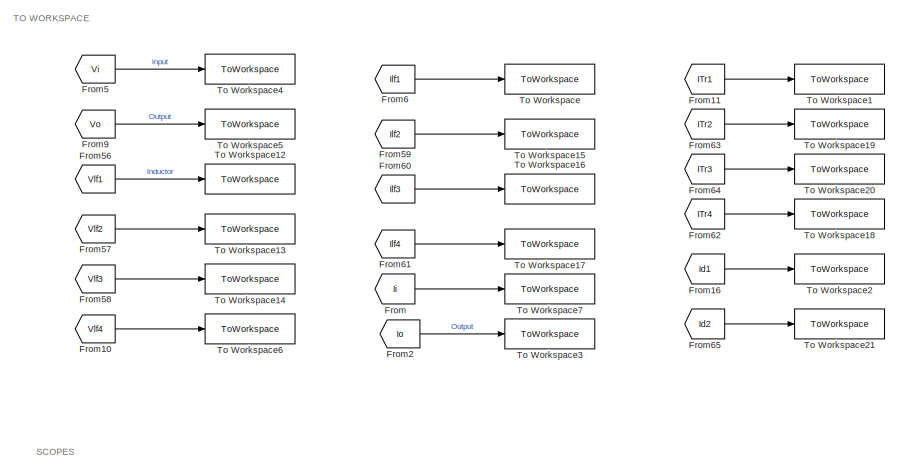
[diagram: root canvas - part 1/11, top center region]
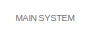
[diagram: root canvas - part 2/11, top left region]
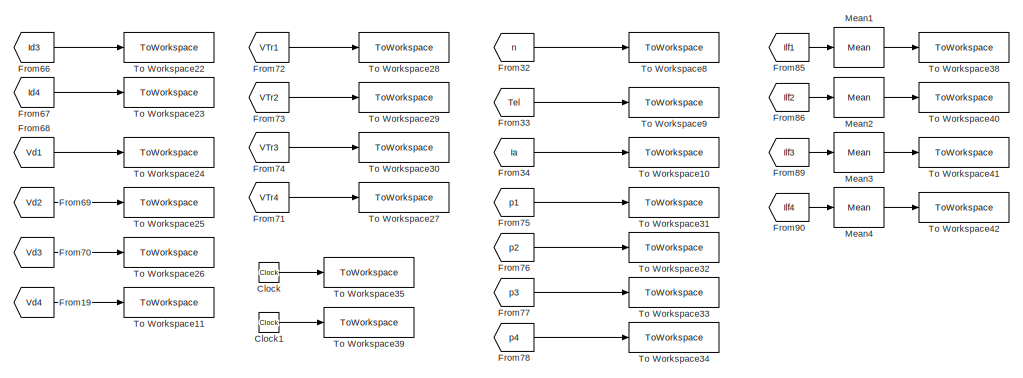
[diagram: root canvas - part 3/11, top right region]
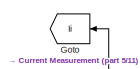
[diagram: root canvas - part 4/11, top left region]
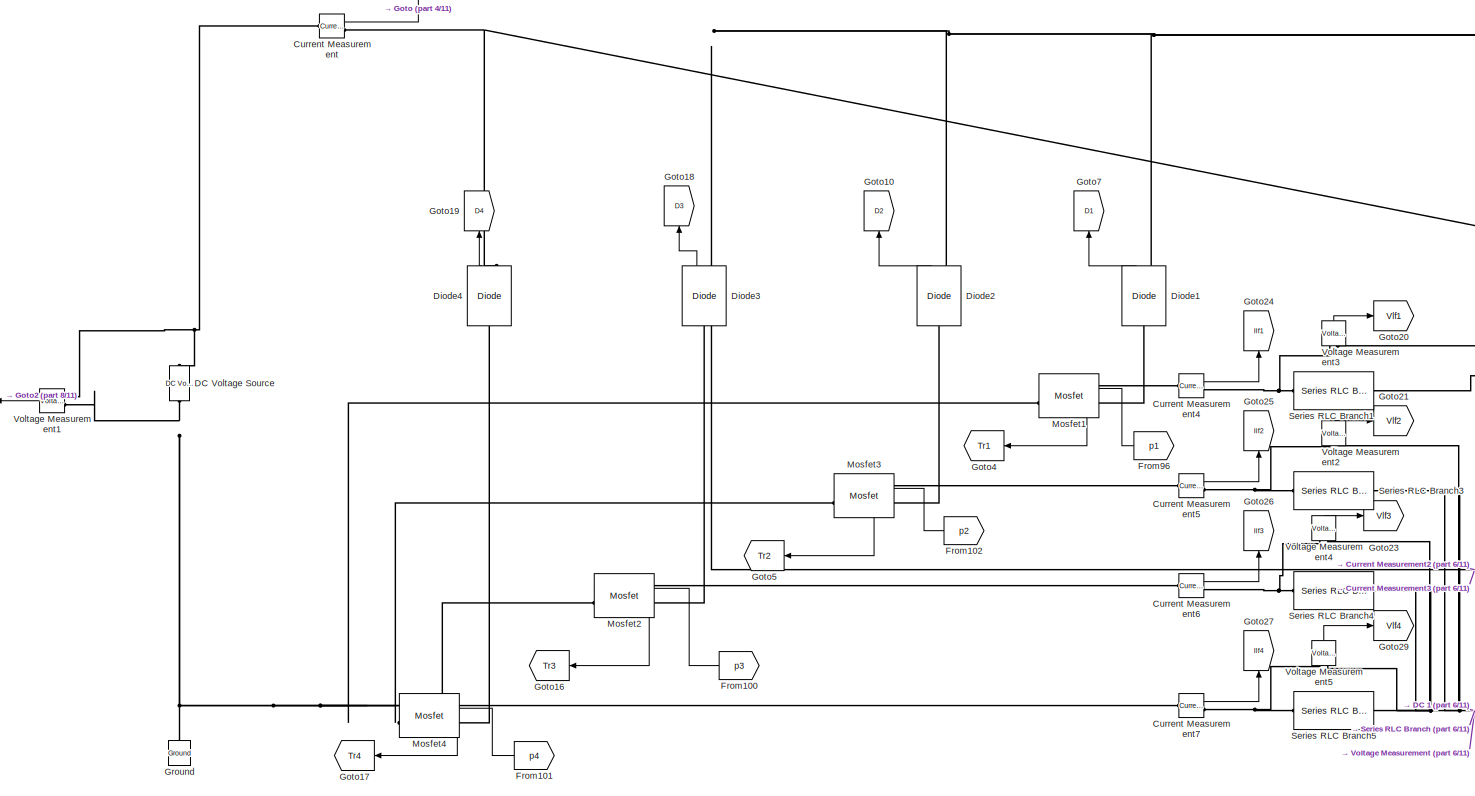
[diagram: root canvas - part 5/11, top left region]
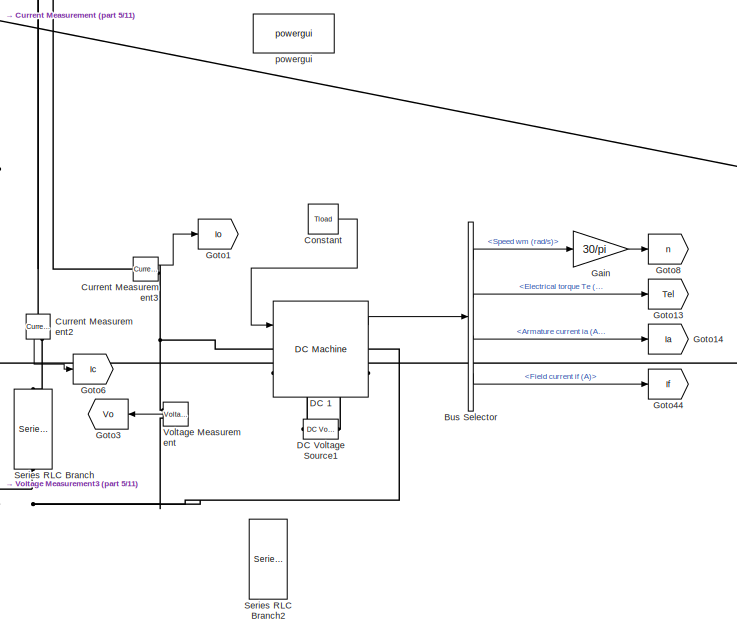
[diagram: root canvas - part 6/11, top center region]
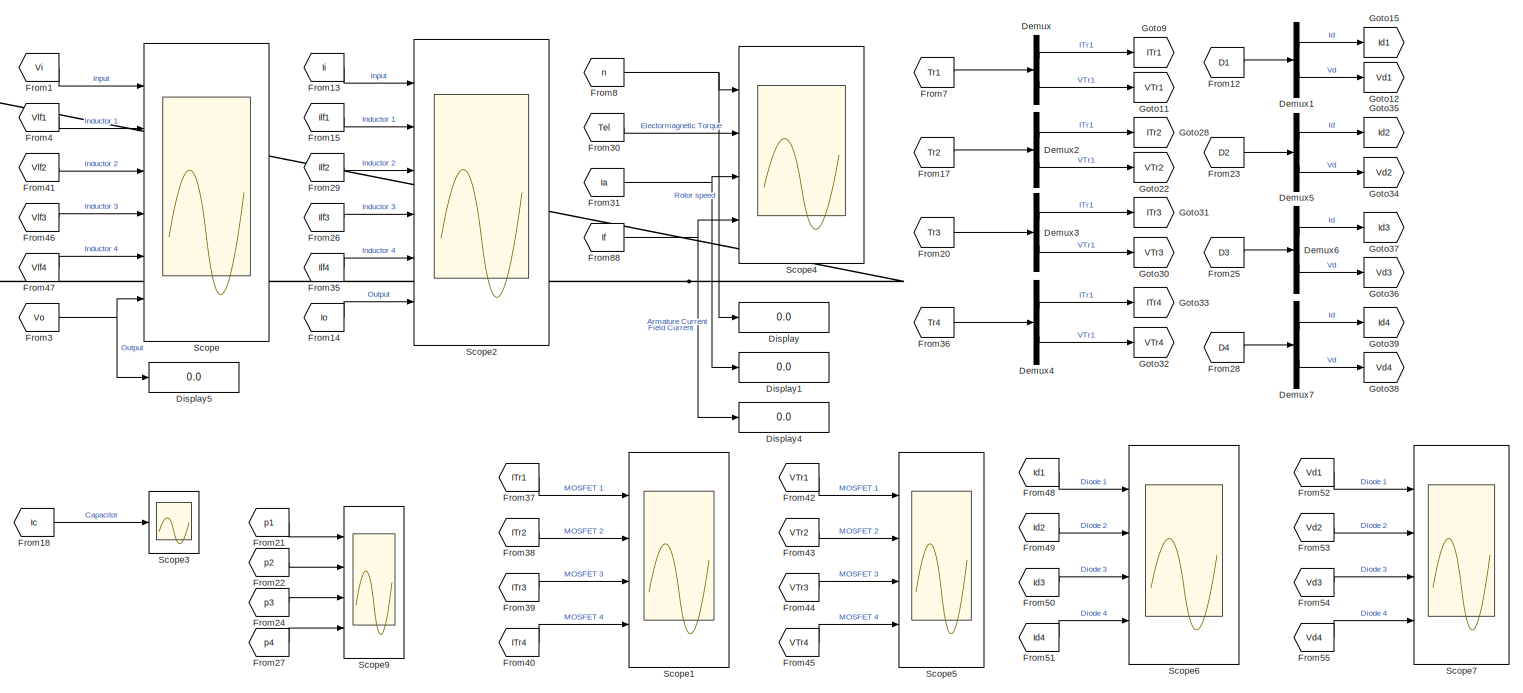
[diagram: root canvas - part 7/11, middle right region]
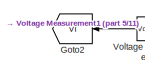
[diagram: root canvas - part 8/11, top left region]
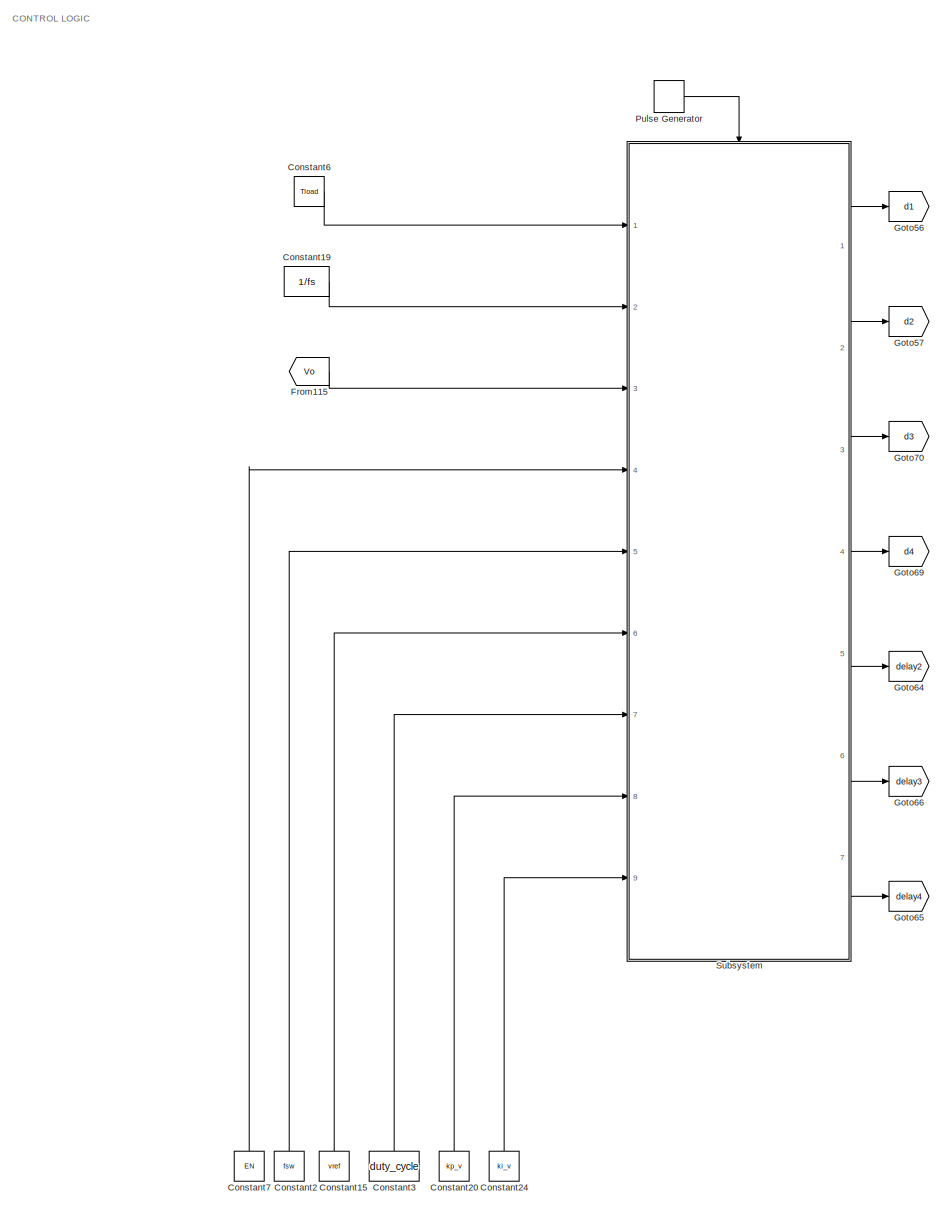
[diagram: root canvas - part 9/11, bottom left region]
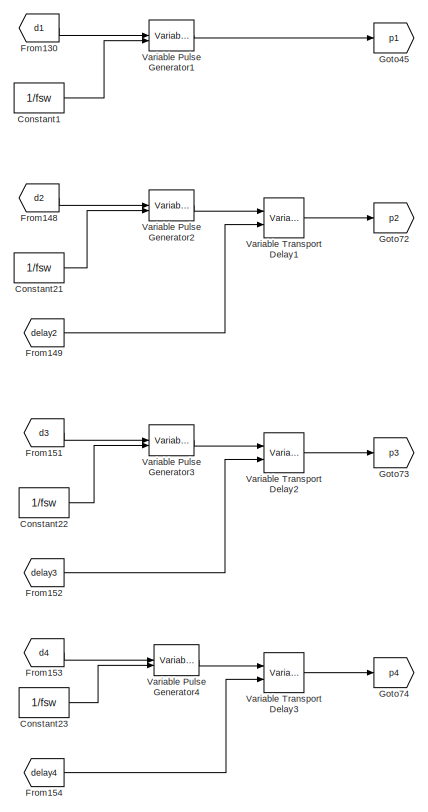
[diagram: root canvas - part 10/11, bottom center region]
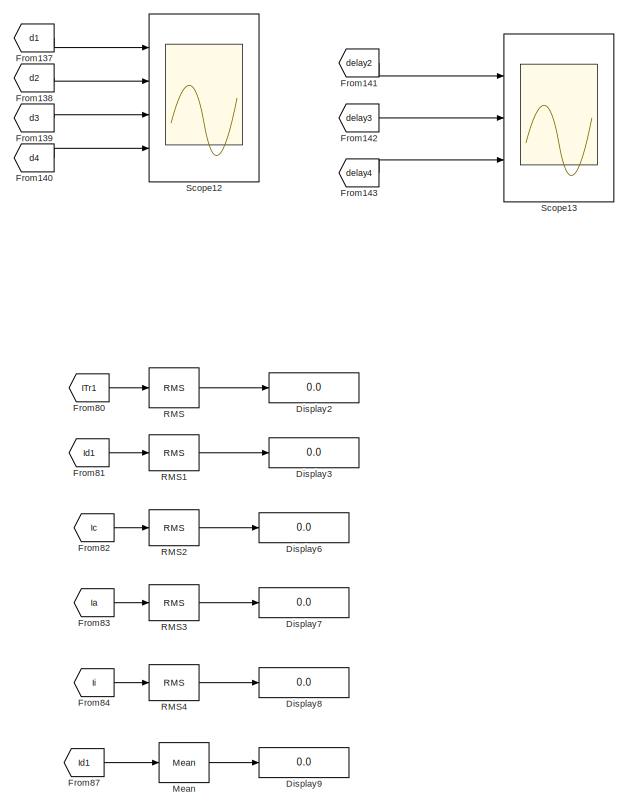
[diagram: root canvas - part 11/11, bottom center region]
MODEL slx_aa81e1dfb4d5
KIND model
CONFIG AbsTol = auto
CONFIG EnableMultiTasking = off
CONFIG FixedStep = auto
CONFIG InitFcn = Interleaved_Script
CONFIG MaxStep = 1e-8
CONFIG MinStep = auto
CONFIG RelTol = 1e-3
CONFIG SampleTimeConstraint = Unconstrained
CONFIG SolverName = ode23tb
CONFIG StartTime = 0.0
CONFIG StopTime = 0.5
BLOCK [BusSelector] Bus Selector
  OutputSignals = Speed wm (rad/s),Electrical torque Te (n m),Armature current ia (A),Field current if (A)
  Ports = [1, 4]
BLOCK [Clock] Clock
BLOCK [Clock] Clock1
BLOCK [Constant] Constant
  Value = Tload
BLOCK [Constant] Constant1
  Value = 1/fsw
BLOCK [Constant] Constant15
  NameLocation = right
  Value = vref
BLOCK [Constant] Constant19
  Value = 1/fs
BLOCK [Constant] Constant2
  NameLocation = right
  Value = fsw
BLOCK [Constant] Constant20
  NameLocation = right
  Value = kp_v
BLOCK [Constant] Constant21
  Value = 1/fsw
BLOCK [Constant] Constant22
  Value = 1/fsw
BLOCK [Constant] Constant23
  Value = 1/fsw
BLOCK [Constant] Constant24
  NameLocation = right
  Value = ki_v
BLOCK [Constant] Constant3
  NameLocation = right
  Value = duty_cycle
BLOCK [Constant] Constant6
  Value = Tload
BLOCK [Constant] Constant7
  NameLocation = right
  Value = EN
BLOCK [Reference] Current Measurement  REF=spsCurrentMeasurementLib/Current Measurement
  Ports = [0, 1, 0, 0, 0, 1, 1]
  SourceBlock = spsCurrentMeasurementLib/Current Measurement
  SourceProductBaseCode = PS
  SourceType = Current Measurement
  UserDataPersistent = on
BLOCK [Reference] Current Measurement2  REF=spsCurrentMeasurementLib/Current Measurement
  NameLocation = left
  Ports = [0, 1, 0, 0, 0, 1, 1]
  SourceBlock = spsCurrentMeasurementLib/Current Measurement
  SourceProductBaseCode = PS
  SourceType = Current Measurement
  UserDataPersistent = on
BLOCK [Reference] Current Measurement3  REF=spsCurrentMeasurementLib/Current Measurement
  Ports = [0, 1, 0, 0, 0, 1, 1]
  SourceBlock = spsCurrentMeasurementLib/Current Measurement
  SourceProductBaseCode = PS
  SourceType = Current Measurement
  UserDataPersistent = on
BLOCK [Reference] Current Measurement4  REF=spsCurrentMeasurementLib/Current Measurement
  Ports = [0, 1, 0, 0, 0, 1, 1]
  SourceBlock = spsCurrentMeasurementLib/Current Measurement
  SourceProductBaseCode = PS
  SourceType = Current Measurement
  UserDataPersistent = on
BLOCK [Reference] Current Measurement5  REF=spsCurrentMeasurementLib/Current Measurement
  Ports = [0, 1, 0, 0, 0, 1, 1]
  SourceBlock = spsCurrentMeasurementLib/Current Measurement
  SourceProductBaseCode = PS
  SourceType = Current Measurement
  UserDataPersistent = on
BLOCK [Reference] Current Measurement6  REF=spsCurrentMeasurementLib/Current Measurement
  Ports = [0, 1, 0, 0, 0, 1, 1]
  SourceBlock = spsCurrentMeasurementLib/Current Measurement
  SourceProductBaseCode = PS
  SourceType = Current Measurement
  UserDataPersistent = on
BLOCK [Reference] Current Measurement7  REF=spsCurrentMeasurementLib/Current Measurement
  Ports = [0, 1, 0, 0, 0, 1, 1]
  SourceBlock = spsCurrentMeasurementLib/Current Measurement
  SourceProductBaseCode = PS
  SourceType = Current Measurement
  UserDataPersistent = on
BLOCK [Reference] DC 1  REF=spsDCMachineLib/DC Machine
  Ports = [1, 1, 0, 0, 0, 2, 2]
  SourceBlock = spsDCMachineLib/DC Machine
  SourceProductBaseCode = PS
  SourceType = DC machine
BLOCK [Reference] DC Voltage Source  REF=spsDCVoltageSourceLib/DC Voltage Source
  Ports = [0, 0, 0, 0, 0, 1, 1]
  SourceBlock = spsDCVoltageSourceLib/DC Voltage Source
  SourceProductBaseCode = PS
  SourceType = DC Voltage Source
BLOCK [Reference] DC Voltage Source1  REF=spsDCVoltageSourceLib/DC Voltage Source
  NameLocation = right
  Ports = [0, 0, 0, 0, 0, 1, 1]
  SourceBlock = spsDCVoltageSourceLib/DC Voltage Source
  SourceProductBaseCode = PS
  SourceType = DC Voltage Source
BLOCK [Demux] Demux
  Outputs = 2
  Ports = [1, 2]
BLOCK [Demux] Demux1
  Outputs = 2
  Ports = [1, 2]
BLOCK [Demux] Demux2
  Outputs = 2
  Ports = [1, 2]
BLOCK [Demux] Demux3
  Outputs = 2
  Ports = [1, 2]
BLOCK [Demux] Demux4
  Outputs = 2
  Ports = [1, 2]
BLOCK [Demux] Demux5
  Outputs = 2
  Ports = [1, 2]
BLOCK [Demux] Demux6
  Outputs = 2
  Ports = [1, 2]
BLOCK [Demux] Demux7
  Outputs = 2
  Ports = [1, 2]
BLOCK [Reference] Diode1  REF=spsDiodeLib/Diode
  NameLocation = right
  Ports = [0, 1, 0, 0, 0, 1, 1]
  SourceBlock = spsDiodeLib/Diode
  SourceProductBaseCode = PS
  SourceType = Diode
BLOCK [Reference] Diode2  REF=spsDiodeLib/Diode
  NameLocation = right
  Ports = [0, 1, 0, 0, 0, 1, 1]
  SourceBlock = spsDiodeLib/Diode
  SourceProductBaseCode = PS
  SourceType = Diode
BLOCK [Reference] Diode3  REF=spsDiodeLib/Diode
  NameLocation = right
  Ports = [0, 1, 0, 0, 0, 1, 1]
  SourceBlock = spsDiodeLib/Diode
  SourceProductBaseCode = PS
  SourceType = Diode
BLOCK [Reference] Diode4  REF=spsDiodeLib/Diode
  NameLocation = right
  Ports = [0, 1, 0, 0, 0, 1, 1]
  SourceBlock = spsDiodeLib/Diode
  SourceProductBaseCode = PS
  SourceType = Diode
BLOCK [Display] Display
  Commented = on
  Decimation = 1
  Ports = [1]
BLOCK [Display] Display1
  Commented = on
  Decimation = 1
  Ports = [1]
BLOCK [Display] Display2
  Commented = on
  Decimation = 1
  Ports = [1]
BLOCK [Display] Display3
  Commented = on
  Decimation = 1
  Ports = [1]
BLOCK [Display] Display4
  Commented = on
  Decimation = 1
  Ports = [1]
BLOCK [Display] Display5
  Commented = on
  Decimation = 1
  Ports = [1]
BLOCK [Display] Display6
  Commented = on
  Decimation = 1
  Ports = [1]
BLOCK [Display] Display7
  Commented = on
  Decimation = 1
  Ports = [1]
BLOCK [Display] Display8
  Commented = on
  Decimation = 1
  Ports = [1]
BLOCK [Display] Display9
  Commented = on
  Decimation = 1
  Ports = [1]
BLOCK [From] From
  Commented = on
  GotoTag = Ii
  TagVisibility = global
BLOCK [From] From1
  Commented = on
  GotoTag = Vi
  TagVisibility = global
BLOCK [From] From10
  Commented = on
  GotoTag = Vlf4
  TagVisibility = global
BLOCK [From] From100
  GotoTag = p3
  NameLocation = top
BLOCK [From] From101
  GotoTag = p4
  NameLocation = top
BLOCK [From] From102
  GotoTag = p2
  NameLocation = top
BLOCK [From] From11
  Commented = on
  GotoTag = ITr1
  TagVisibility = global
BLOCK [From] From115
  GotoTag = Vo
  TagVisibility = global
BLOCK [From] From12
  GotoTag = D1
  TagVisibility = global
BLOCK [From] From13
  Commented = on
  GotoTag = Ii
  TagVisibility = global
BLOCK [From] From130
  GotoTag = d1
BLOCK [From] From137
  Commented = on
  GotoTag = d1
BLOCK [From] From138
  Commented = on
  GotoTag = d2
BLOCK [From] From139
  Commented = on
  GotoTag = d3
BLOCK [From] From14
  Commented = on
  GotoTag = Io
  TagVisibility = global
BLOCK [From] From140
  Commented = on
  GotoTag = d4
BLOCK [From] From141
  Commented = on
  GotoTag = delay2
BLOCK [From] From142
  Commented = on
  GotoTag = delay3
BLOCK [From] From143
  Commented = on
  GotoTag = delay4
BLOCK [From] From148
  GotoTag = d2
BLOCK [From] From149
  GotoTag = delay2
BLOCK [From] From15
  Commented = on
  GotoTag = Ilf1
  TagVisibility = global
BLOCK [From] From151
  GotoTag = d3
BLOCK [From] From152
  GotoTag = delay3
BLOCK [From] From153
  GotoTag = d4
BLOCK [From] From154
  GotoTag = delay4
BLOCK [From] From16
  Commented = on
  GotoTag = Id1
  TagVisibility = global
BLOCK [From] From17
  GotoTag = Tr2
  TagVisibility = global
BLOCK [From] From18
  Commented = on
  GotoTag = Ic
  TagVisibility = global
BLOCK [From] From19
  Commented = on
  GotoTag = Vd4
  TagVisibility = global
BLOCK [From] From2
  Commented = on
  GotoTag = Io
  TagVisibility = global
BLOCK [From] From20
  GotoTag = Tr3
  TagVisibility = global
BLOCK [From] From21
  Commented = on
  GotoTag = p1
BLOCK [From] From22
  Commented = on
  GotoTag = p2
BLOCK [From] From23
  GotoTag = D2
  TagVisibility = global
BLOCK [From] From24
  Commented = on
  GotoTag = p3
BLOCK [From] From25
  GotoTag = D3
  TagVisibility = global
BLOCK [From] From26
  Commented = on
  GotoTag = Ilf3
  TagVisibility = global
BLOCK [From] From27
  Commented = on
  GotoTag = p4
BLOCK [From] From28
  GotoTag = D4
  TagVisibility = global
BLOCK [From] From29
  Commented = on
  GotoTag = Ilf2
  TagVisibility = global
BLOCK [From] From3
  Commented = on
  GotoTag = Vo
  TagVisibility = global
BLOCK [From] From30
  Commented = on
  GotoTag = Tel
  TagVisibility = global
BLOCK [From] From31
  Commented = on
  GotoTag = Ia
  TagVisibility = global
BLOCK [From] From32
  GotoTag = n
  TagVisibility = global
BLOCK [From] From33
  Commented = on
  GotoTag = Tel
  TagVisibility = global
BLOCK [From] From34
  GotoTag = Ia
  TagVisibility = global
BLOCK [From] From35
  Commented = on
  GotoTag = Ilf4
  TagVisibility = global
BLOCK [From] From36
  GotoTag = Tr4
  TagVisibility = global
BLOCK [From] From37
  Commented = on
  GotoTag = ITr1
  TagVisibility = global
BLOCK [From] From38
  Commented = on
  GotoTag = ITr2
  TagVisibility = global
BLOCK [From] From39
  Commented = on
  GotoTag = ITr3
  TagVisibility = global
BLOCK [From] From4
  Commented = on
  GotoTag = Vlf1
  TagVisibility = global
BLOCK [From] From40
  Commented = on
  GotoTag = ITr4
  TagVisibility = global
BLOCK [From] From41
  Commented = on
  GotoTag = Vlf2
  TagVisibility = global
BLOCK [From] From42
  Commented = on
  GotoTag = VTr1
  TagVisibility = global
BLOCK [From] From43
  Commented = on
  GotoTag = VTr2
  TagVisibility = global
BLOCK [From] From44
  Commented = on
  GotoTag = VTr3
  TagVisibility = global
BLOCK [From] From45
  Commented = on
  GotoTag = VTr4
  TagVisibility = global
BLOCK [From] From46
  Commented = on
  GotoTag = Vlf3
  TagVisibility = global
BLOCK [From] From47
  Commented = on
  GotoTag = Vlf4
  TagVisibility = global
BLOCK [From] From48
  Commented = on
  GotoTag = Id1
  TagVisibility = global
BLOCK [From] From49
  Commented = on
  GotoTag = Id2
  TagVisibility = global
BLOCK [From] From5
  Commented = on
  GotoTag = Vi
  TagVisibility = global
BLOCK [From] From50
  Commented = on
  GotoTag = Id3
  TagVisibility = global
BLOCK [From] From51
  Commented = on
  GotoTag = Id4
  TagVisibility = global
BLOCK [From] From52
  Commented = on
  GotoTag = Vd1
  TagVisibility = global
BLOCK [From] From53
  Commented = on
  GotoTag = Vd2
  TagVisibility = global
BLOCK [From] From54
  Commented = on
  GotoTag = Vd3
  TagVisibility = global
BLOCK [From] From55
  Commented = on
  GotoTag = Vd4
  TagVisibility = global
BLOCK [From] From56
  Commented = on
  GotoTag = Vlf1
  TagVisibility = global
BLOCK [From] From57
  Commented = on
  GotoTag = Vlf2
  TagVisibility = global
BLOCK [From] From58
  Commented = on
  GotoTag = Vlf3
  TagVisibility = global
BLOCK [From] From59
  GotoTag = Ilf2
  TagVisibility = global
BLOCK [From] From6
  GotoTag = Ilf1
  TagVisibility = global
BLOCK [From] From60
  GotoTag = Ilf3
  TagVisibility = global
BLOCK [From] From61
  GotoTag = Ilf4
  TagVisibility = global
BLOCK [From] From62
  Commented = on
  GotoTag = ITr4
  TagVisibility = global
BLOCK [From] From63
  Commented = on
  GotoTag = ITr2
  TagVisibility = global
BLOCK [From] From64
  Commented = on
  GotoTag = ITr3
  TagVisibility = global
BLOCK [From] From65
  Commented = on
  GotoTag = Id2
  TagVisibility = global
BLOCK [From] From66
  Commented = on
  GotoTag = Id3
  TagVisibility = global
BLOCK [From] From67
  Commented = on
  GotoTag = Id4
  TagVisibility = global
BLOCK [From] From68
  Commented = on
  GotoTag = Vd1
  TagVisibility = global
BLOCK [From] From69
  Commented = on
  GotoTag = Vd2
  TagVisibility = global
BLOCK [From] From7
  GotoTag = Tr1
  TagVisibility = global
BLOCK [From] From70
  Commented = on
  GotoTag = Vd3
  TagVisibility = global
BLOCK [From] From71
  Commented = on
  GotoTag = VTr4
  TagVisibility = global
BLOCK [From] From72
  Commented = on
  GotoTag = VTr1
  TagVisibility = global
BLOCK [From] From73
  Commented = on
  GotoTag = VTr2
  TagVisibility = global
BLOCK [From] From74
  Commented = on
  GotoTag = VTr3
  TagVisibility = global
BLOCK [From] From75
  Commented = on
  GotoTag = p1
BLOCK [From] From76
  Commented = on
  GotoTag = p2
BLOCK [From] From77
  Commented = on
  GotoTag = p3
BLOCK [From] From78
  Commented = on
  GotoTag = p4
BLOCK [From] From8
  Commented = on
  GotoTag = n
  TagVisibility = global
BLOCK [From] From80
  Commented = on
  GotoTag = ITr1
  TagVisibility = global
BLOCK [From] From81
  Commented = on
  GotoTag = Id1
  TagVisibility = global
BLOCK [From] From82
  Commented = on
  GotoTag = Ic
  TagVisibility = global
BLOCK [From] From83
  Commented = on
  GotoTag = Ia
  TagVisibility = global
BLOCK [From] From84
  Commented = on
  GotoTag = Ii
  TagVisibility = global
BLOCK [From] From85
  Commented = on
  GotoTag = Ilf1
  TagVisibility = global
BLOCK [From] From86
  Commented = on
  GotoTag = Ilf2
  TagVisibility = global
BLOCK [From] From87
  Commented = on
  GotoTag = Id1
  TagVisibility = global
BLOCK [From] From88
  Commented = on
  GotoTag = If
  TagVisibility = global
BLOCK [From] From89
  Commented = on
  GotoTag = Ilf3
  TagVisibility = global
BLOCK [From] From9
  GotoTag = Vo
  TagVisibility = global
BLOCK [From] From90
  Commented = on
  GotoTag = Ilf4
  TagVisibility = global
BLOCK [From] From96
  GotoTag = p1
  NameLocation = top
BLOCK [Gain] Gain
  Gain = 30/pi
BLOCK [Goto] Goto
  GotoTag = Ii
  TagVisibility = global
BLOCK [Goto] Goto1
  GotoTag = Io
  TagVisibility = global
BLOCK [Goto] Goto10
  GotoTag = D2
  NameLocation = right
  TagVisibility = global
BLOCK [Goto] Goto11
  GotoTag = VTr1
  TagVisibility = global
BLOCK [Goto] Goto12
  GotoTag = Vd1
  TagVisibility = global
BLOCK [Goto] Goto13
  GotoTag = Tel
  TagVisibility = global
BLOCK [Goto] Goto14
  GotoTag = Ia
  TagVisibility = global
BLOCK [Goto] Goto15
  GotoTag = Id1
  TagVisibility = global
BLOCK [Goto] Goto16
  GotoTag = Tr3
  NameLocation = top
  TagVisibility = global
BLOCK [Goto] Goto17
  GotoTag = Tr4
  NameLocation = top
  TagVisibility = global
BLOCK [Goto] Goto18
  GotoTag = D3
  NameLocation = right
  TagVisibility = global
BLOCK [Goto] Goto19
  GotoTag = D4
  NameLocation = right
  TagVisibility = global
BLOCK [Goto] Goto2
  GotoTag = Vi
  TagVisibility = global
BLOCK [Goto] Goto20
  GotoTag = Vlf1
  TagVisibility = global
BLOCK [Goto] Goto21
  GotoTag = Vlf2
  TagVisibility = global
BLOCK [Goto] Goto22
  GotoTag = VTr2
  TagVisibility = global
BLOCK [Goto] Goto23
  GotoTag = Vlf3
  TagVisibility = global
BLOCK [Goto] Goto24
  GotoTag = Ilf1
  NameLocation = right
  TagVisibility = global
BLOCK [Goto] Goto25
  GotoTag = Ilf2
  NameLocation = right
  TagVisibility = global
BLOCK [Goto] Goto26
  GotoTag = Ilf3
  NameLocation = right
  TagVisibility = global
BLOCK [Goto] Goto27
  GotoTag = Ilf4
  NameLocation = right
  TagVisibility = global
BLOCK [Goto] Goto28
  GotoTag = ITr2
  TagVisibility = global
BLOCK [Goto] Goto29
  GotoTag = Vlf4
  TagVisibility = global
BLOCK [Goto] Goto3
  GotoTag = Vo
  NameLocation = top
  TagVisibility = global
BLOCK [Goto] Goto30
  GotoTag = VTr3
  TagVisibility = global
BLOCK [Goto] Goto31
  GotoTag = ITr3
  TagVisibility = global
BLOCK [Goto] Goto32
  GotoTag = VTr4
  TagVisibility = global
BLOCK [Goto] Goto33
  GotoTag = ITr4
  TagVisibility = global
BLOCK [Goto] Goto34
  GotoTag = Vd2
  TagVisibility = global
BLOCK [Goto] Goto35
  GotoTag = Id2
  TagVisibility = global
BLOCK [Goto] Goto36
  GotoTag = Vd3
  TagVisibility = global
BLOCK [Goto] Goto37
  GotoTag = Id3
  TagVisibility = global
BLOCK [Goto] Goto38
  GotoTag = Vd4
  TagVisibility = global
BLOCK [Goto] Goto39
  GotoTag = Id4
  TagVisibility = global
BLOCK [Goto] Goto4
  GotoTag = Tr1
  NameLocation = top
  TagVisibility = global
BLOCK [Goto] Goto44
  GotoTag = If
  TagVisibility = global
BLOCK [Goto] Goto45
  GotoTag = p1
BLOCK [Goto] Goto5
  GotoTag = Tr2
  NameLocation = top
  TagVisibility = global
BLOCK [Goto] Goto56
  GotoTag = d1
BLOCK [Goto] Goto57
  GotoTag = d2
BLOCK [Goto] Goto6
  GotoTag = Ic
  TagVisibility = global
BLOCK [Goto] Goto64
  GotoTag = delay2
BLOCK [Goto] Goto65
  GotoTag = delay4
BLOCK [Goto] Goto66
  GotoTag = delay3
BLOCK [Goto] Goto69
  GotoTag = d4
BLOCK [Goto] Goto7
  GotoTag = D1
  NameLocation = right
  TagVisibility = global
BLOCK [Goto] Goto70
  GotoTag = d3
BLOCK [Goto] Goto72
  GotoTag = p2
BLOCK [Goto] Goto73
  GotoTag = p3
BLOCK [Goto] Goto74
  GotoTag = p4
BLOCK [Goto] Goto8
  GotoTag = n
  TagVisibility = global
BLOCK [Goto] Goto9
  GotoTag = ITr1
  TagVisibility = global
BLOCK [Reference] Ground  REF=spsGroundLib/Ground
  NameLocation = right
  Ports = [0, 0, 0, 0, 0, 1]
  SourceBlock = spsGroundLib/Ground
  SourceProductBaseCode = PS
  SourceType = Ground
BLOCK [Reference] Mean  REF=spsMeanLib/Mean
  Commented = on
  Ports = [1, 1]
  SourceBlock = spsMeanLib/Mean
  SourceProductBaseCode = PS
  SourceType = Mean
BLOCK [Reference] Mean1  REF=spsMeanLib/Mean
  Commented = on
  Ports = [1, 1]
  SourceBlock = spsMeanLib/Mean
  SourceProductBaseCode = PS
  SourceType = Mean
BLOCK [Reference] Mean2  REF=spsMeanLib/Mean
  Commented = on
  Ports = [1, 1]
  SourceBlock = spsMeanLib/Mean
  SourceProductBaseCode = PS
  SourceType = Mean
BLOCK [Reference] Mean3  REF=spsMeanLib/Mean
  Commented = on
  Ports = [1, 1]
  SourceBlock = spsMeanLib/Mean
  SourceProductBaseCode = PS
  SourceType = Mean
BLOCK [Reference] Mean4  REF=spsMeanLib/Mean
  Commented = on
  Ports = [1, 1]
  SourceBlock = spsMeanLib/Mean
  SourceProductBaseCode = PS
  SourceType = Mean
BLOCK [Reference] Mosfet1  REF=spsMosfetLib/Mosfet
  NameLocation = top
  Ports = [1, 1, 0, 0, 0, 1, 1]
  SourceBlock = spsMosfetLib/Mosfet
  SourceProductBaseCode = PS
  SourceType = Mosfet
BLOCK [Reference] Mosfet2  REF=spsMosfetLib/Mosfet
  NameLocation = top
  Ports = [1, 1, 0, 0, 0, 1, 1]
  SourceBlock = spsMosfetLib/Mosfet
  SourceProductBaseCode = PS
  SourceType = Mosfet
BLOCK [Reference] Mosfet3  REF=spsMosfetLib/Mosfet
  NameLocation = top
  Ports = [1, 1, 0, 0, 0, 1, 1]
  SourceBlock = spsMosfetLib/Mosfet
  SourceProductBaseCode = PS
  SourceType = Mosfet
BLOCK [Reference] Mosfet4  REF=spsMosfetLib/Mosfet
  NameLocation = top
  Ports = [1, 1, 0, 0, 0, 1, 1]
  SourceBlock = spsMosfetLib/Mosfet
  SourceProductBaseCode = PS
  SourceType = Mosfet
BLOCK [DiscretePulseGenerator] Pulse Generator
  Period = 1/20000
  Ports = [0, 1]
  PulseType = Time based
  PulseWidth = 50
BLOCK [Reference] RMS  REF=spsRMSLib/RMS
  Commented = on
  Ports = [1, 1]
  SourceBlock = spsRMSLib/RMS
  SourceProductBaseCode = PS
  SourceType = RMS
BLOCK [Reference] RMS1  REF=spsRMSLib/RMS
  Commented = on
  Ports = [1, 1]
  SourceBlock = spsRMSLib/RMS
  SourceProductBaseCode = PS
  SourceType = RMS
BLOCK [Reference] RMS2  REF=spsRMSLib/RMS
  Commented = on
  Ports = [1, 1]
  SourceBlock = spsRMSLib/RMS
  SourceProductBaseCode = PS
  SourceType = RMS
BLOCK [Reference] RMS3  REF=spsRMSLib/RMS
  Commented = on
  Ports = [1, 1]
  SourceBlock = spsRMSLib/RMS
  SourceProductBaseCode = PS
  SourceType = RMS
BLOCK [Reference] RMS4  REF=spsRMSLib/RMS
  Commented = on
  Ports = [1, 1]
  SourceBlock = spsRMSLib/RMS
  SourceProductBaseCode = PS
  SourceType = RMS
BLOCK [Scope] Scope
  Commented = on
  Floating = off
  NumInputPorts = 6
  Ports = [6]
  ScopeSpecificationString = Simulink.scopes.TimeScopeBlockCfg('CurrentConfiguration', extmgr.ConfigurationSet(extmgr.Configuration('Core','General UI',true),extmgr.Configuration('Core','Source UI',true),extmgr.Configuration('Sources','WiredSimulink',true,'DataLoggingVariableName','ScopeData1'),extmgr.Configuration('Visuals','Time Domain',true,'SerializedDisplays',{struct('MinYLimReal','140.00000','MaxYLimReal','340.00000','Y...<+4860ch>
BLOCK [Scope] Scope1
  Commented = on
  Floating = off
  NumInputPorts = 4
  Ports = [4]
  ScopeSpecificationString = Simulink.scopes.TimeScopeBlockCfg('CurrentConfiguration', extmgr.ConfigurationSet(extmgr.Configuration('Core','General UI',true),extmgr.Configuration('Core','Source UI',true),extmgr.Configuration('Sources','WiredSimulink',true,'DataLoggingVariableName','ScopeData2'),extmgr.Configuration('Visuals','Time Domain',true,'SerializedDisplays',{struct('MinYLimReal','-4.99195','MaxYLimReal','44.92751','YLa...<+3502ch>
BLOCK [Scope] Scope12
  Commented = on
  Floating = off
  NumInputPorts = 4
  Ports = [4]
  ScopeSpecificationString = Simulink.scopes.TimeScopeBlockCfg('CurrentConfiguration', extmgr.ConfigurationSet(extmgr.Configuration('Core','General UI',true),extmgr.Configuration('Core','Source UI',true),extmgr.Configuration('Sources','WiredSimulink',true,'DataLoggingVariableName','ScopeData3'),extmgr.Configuration('Visuals','Time Domain',true,'SerializedDisplays',{struct('MinYLimReal','-0.12375','MaxYLimReal','1.11375','YLab...<+3457ch>
BLOCK [Scope] Scope13
  Commented = on
  Floating = off
  NumInputPorts = 3
  Ports = [3]
  ScopeSpecificationString = Simulink.scopes.TimeScopeBlockCfg('CurrentConfiguration', extmgr.ConfigurationSet(extmgr.Configuration('Core','General UI',true),extmgr.Configuration('Core','Source UI',true),extmgr.Configuration('Sources','WiredSimulink',true,'DataLoggingVariableName','ScopeData4'),extmgr.Configuration('Visuals','Time Domain',true,'SerializedDisplays',{struct('MinYLimReal','-0.0000004','MaxYLimReal','0.0000038','...<+2793ch>
BLOCK [Scope] Scope2
  Commented = on
  Floating = off
  NumInputPorts = 6
  Ports = [6]
  ScopeSpecificationString = Simulink.scopes.TimeScopeBlockCfg('CurrentConfiguration', extmgr.ConfigurationSet(extmgr.Configuration('Core','General UI',true),extmgr.Configuration('Core','Source UI',true),extmgr.Configuration('Sources','WiredSimulink',true,'DataLoggingVariableName','ScopeData5'),extmgr.Configuration('Visuals','Time Domain',true,'SerializedDisplays',{struct('MinYLimReal','-15.06678','MaxYLimReal','135.63586','Y...<+4888ch>
BLOCK [Scope] Scope3
  Commented = on
  Floating = off
  NumInputPorts = 1
  Ports = [1]
  ScopeSpecificationString = Simulink.scopes.TimeScopeBlockCfg('CurrentConfiguration', extmgr.ConfigurationSet(extmgr.Configuration('Core','General UI',true),extmgr.Configuration('Core','Source UI',true),extmgr.Configuration('Sources','WiredSimulink',true,'DataLoggingVariableName','ScopeData6'),extmgr.Configuration('Visuals','Time Domain',true,'SerializedDisplays',{struct('MinYLimReal','-0.57404','MaxYLimReal','0.56536','YLab...<+1412ch>
BLOCK [Scope] Scope4
  Commented = on
  Floating = off
  NumInputPorts = 4
  Ports = [4]
  ScopeSpecificationString = Simulink.scopes.TimeScopeBlockCfg('CurrentConfiguration', extmgr.ConfigurationSet(extmgr.Configuration('Core','General UI',true),extmgr.Configuration('Core','Source UI',true),extmgr.Configuration('Sources','WiredSimulink',true,'DataLoggingVariableName','ScopeData7'),extmgr.Configuration('Visuals','Time Domain',true,'SerializedDisplays',{struct('MinYLimReal','264.19654','MaxYLimReal','501.16131','Y...<+3510ch>
BLOCK [Scope] Scope5
  Commented = on
  Floating = off
  NumInputPorts = 4
  Ports = [4]
  ScopeSpecificationString = Simulink.scopes.TimeScopeBlockCfg('CurrentConfiguration', extmgr.ConfigurationSet(extmgr.Configuration('Core','General UI',true),extmgr.Configuration('Core','Source UI',true),extmgr.Configuration('Sources','WiredSimulink',true,'DataLoggingVariableName','ScopeData8'),extmgr.Configuration('Visuals','Time Domain',true,'SerializedDisplays',{struct('MinYLimReal','-17.38682','MaxYLimReal','239.77333','Y...<+3497ch>
BLOCK [Scope] Scope6
  Commented = on
  Floating = off
  NumInputPorts = 4
  Ports = [4]
  ScopeSpecificationString = Simulink.scopes.TimeScopeBlockCfg('CurrentConfiguration', extmgr.ConfigurationSet(extmgr.Configuration('Core','General UI',true),extmgr.Configuration('Core','Source UI',true),extmgr.Configuration('Sources','WiredSimulink',true,'DataLoggingVariableName','ScopeData9'),extmgr.Configuration('Visuals','Time Domain',true,'SerializedDisplays',{struct('MinYLimReal','5.08553','MaxYLimReal','5.48331','YLabe...<+3491ch>
BLOCK [Scope] Scope7
  Commented = on
  Floating = off
  NumInputPorts = 4
  Ports = [4]
  ScopeSpecificationString = Simulink.scopes.TimeScopeBlockCfg('CurrentConfiguration', extmgr.ConfigurationSet(extmgr.Configuration('Core','General UI',true),extmgr.Configuration('Core','Source UI',true),extmgr.Configuration('Sources','WiredSimulink',true,'DataLoggingVariableName','ScopeData10'),extmgr.Configuration('Visuals','Time Domain',true,'SerializedDisplays',{struct('MinYLimReal','-268.07692','MaxYLimReal','30.00000','...<+3464ch>
BLOCK [Scope] Scope9
  Commented = on
  Floating = off
  NumInputPorts = 4
  Ports = [4]
  ScopeSpecificationString = Simulink.scopes.TimeScopeBlockCfg('CurrentConfiguration', extmgr.ConfigurationSet(extmgr.Configuration('Core','General UI',true),extmgr.Configuration('Core','Source UI',true),extmgr.Configuration('Sources','WiredSimulink',true,'DataLoggingVariableName','ScopeData12'),extmgr.Configuration('Visuals','Time Domain',true,'SerializedDisplays',{struct('MinYLimReal','-0.04515','MaxYLimReal','1.06718','YLa...<+3558ch>
BLOCK [Reference] Series RLC Branch  REF=spsSeriesRLCBranchLib/Series RLC Branch
  NameLocation = left
  Ports = [0, 0, 0, 0, 0, 1, 1]
  SourceBlock = spsSeriesRLCBranchLib/Series RLC Branch
  SourceProductBaseCode = PS
  SourceType = Series RLC Branch
BLOCK [Reference] Series RLC Branch1  REF=spsSeriesRLCBranchLib/Series RLC Branch
  Ports = [0, 0, 0, 0, 0, 1, 1]
  SourceBlock = spsSeriesRLCBranchLib/Series RLC Branch
  SourceProductBaseCode = PS
  SourceType = Series RLC Branch
BLOCK [Reference] Series RLC Branch2  REF=spsSeriesRLCBranchLib/Series RLC Branch
  Commented = on
  NameLocation = left
  Ports = [0, 0, 0, 0, 0, 1, 1]
  SourceBlock = spsSeriesRLCBranchLib/Series RLC Branch
  SourceProductBaseCode = PS
  SourceType = Series RLC Branch
BLOCK [Reference] Series RLC Branch3  REF=spsSeriesRLCBranchLib/Series RLC Branch
  Ports = [0, 0, 0, 0, 0, 1, 1]
  SourceBlock = spsSeriesRLCBranchLib/Series RLC Branch
  SourceProductBaseCode = PS
  SourceType = Series RLC Branch
BLOCK [Reference] Series RLC Branch4  REF=spsSeriesRLCBranchLib/Series RLC Branch
  Ports = [0, 0, 0, 0, 0, 1, 1]
  SourceBlock = spsSeriesRLCBranchLib/Series RLC Branch
  SourceProductBaseCode = PS
  SourceType = Series RLC Branch
BLOCK [Reference] Series RLC Branch5  REF=spsSeriesRLCBranchLib/Series RLC Branch
  Ports = [0, 0, 0, 0, 0, 1, 1]
  SourceBlock = spsSeriesRLCBranchLib/Series RLC Branch
  SourceProductBaseCode = PS
  SourceType = Series RLC Branch
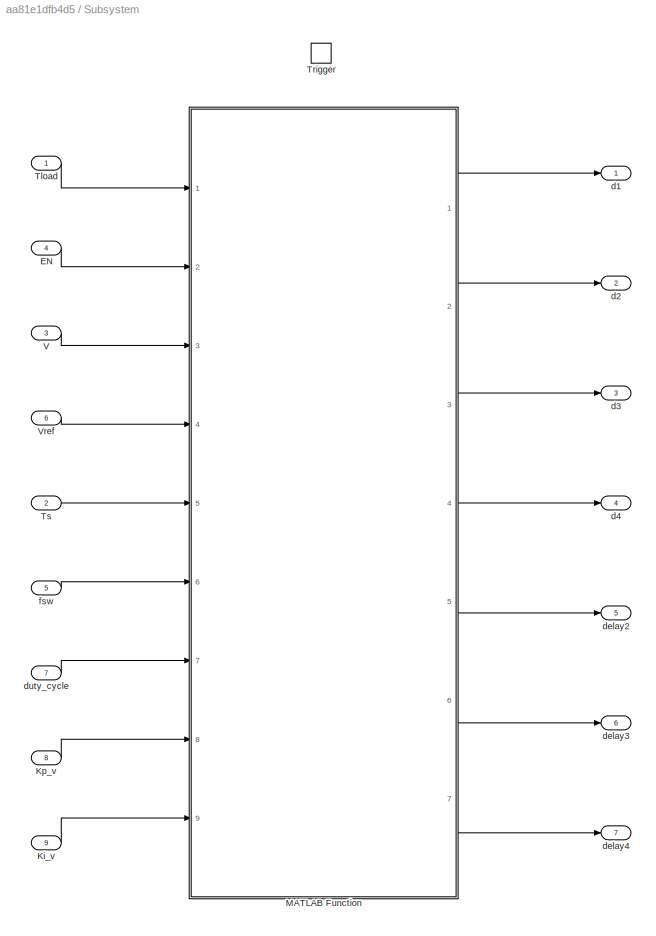
BLOCK [SubSystem] Subsystem
  Ports = [9, 7, 0, 1]
  RequestExecContextInheritance = off
BLOCK [Inport] Subsystem/EN
  Port = 4
BLOCK [Inport] Subsystem/Ki_v
  Port = 9
BLOCK [Inport] Subsystem/Kp_v
  Port = 8
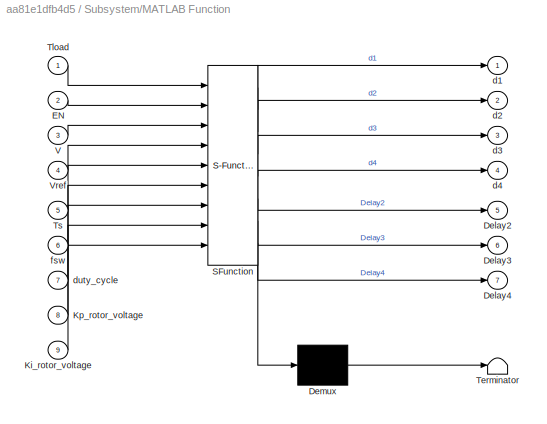
BLOCK [SubSystem] Subsystem/MATLAB Function
  ErrorFcn = Stateflow.Translate.translate
  PermitHierarchicalResolution = ExplicitOnly
  Ports = [9, 7]
  RequestExecContextInheritance = off
  SFBlockType = MATLAB Function
  TreatAsAtomicUnit = on
BLOCK [Demux] Subsystem/MATLAB Function/ Demux 
  Outputs = 1
  Ports = [1, 1]
BLOCK [S-Function] Subsystem/MATLAB Function/ SFunction 
  EnableBusSupport = on
  FunctionName = sf_sfun
  PortCounts = [9 8]
  Ports = [9, 8]
  SFcnIsStateOwnerBlock = off
  SFunctionDeploymentMode = off
  Tag = Stateflow S-Function 1
BLOCK [Terminator] Subsystem/MATLAB Function/ Terminator 
BLOCK [Outport] Subsystem/MATLAB Function/Delay2
  Port = 5
BLOCK [Outport] Subsystem/MATLAB Function/Delay3
  Port = 6
BLOCK [Outport] Subsystem/MATLAB Function/Delay4
  Port = 7
BLOCK [Inport] Subsystem/MATLAB Function/EN
  Port = 2
BLOCK [Inport] Subsystem/MATLAB Function/Ki_rotor_voltage
  Port = 9
BLOCK [Inport] Subsystem/MATLAB Function/Kp_rotor_voltage
  Port = 8
BLOCK [Inport] Subsystem/MATLAB Function/Tload
BLOCK [Inport] Subsystem/MATLAB Function/Ts
  Port = 5
BLOCK [Inport] Subsystem/MATLAB Function/V
  Port = 3
BLOCK [Inport] Subsystem/MATLAB Function/Vref
  Port = 4
BLOCK [Outport] Subsystem/MATLAB Function/d1
BLOCK [Outport] Subsystem/MATLAB Function/d2
  Port = 2
BLOCK [Outport] Subsystem/MATLAB Function/d3
  Port = 3
BLOCK [Outport] Subsystem/MATLAB Function/d4
  Port = 4
BLOCK [Inport] Subsystem/MATLAB Function/duty_cycle
  Port = 7
BLOCK [Inport] Subsystem/MATLAB Function/fsw
  Port = 6
BLOCK [Inport] Subsystem/Tload
BLOCK [TriggerPort] Subsystem/Trigger
  PortDimensions = 1
  Ports = []
  StatesWhenEnabling = held
  VariantControl = (inherit)
BLOCK [Inport] Subsystem/Ts
  Port = 2
BLOCK [Inport] Subsystem/V
  Port = 3
BLOCK [Inport] Subsystem/Vref
  Port = 6
BLOCK [Outport] Subsystem/d1
BLOCK [Outport] Subsystem/d2
  Port = 2
BLOCK [Outport] Subsystem/d3
  Port = 3
BLOCK [Outport] Subsystem/d4
  Port = 4
BLOCK [Outport] Subsystem/delay2
  Port = 5
BLOCK [Outport] Subsystem/delay3
  Port = 6
BLOCK [Outport] Subsystem/delay4
  Port = 7
BLOCK [Inport] Subsystem/duty_cycle
  Port = 7
BLOCK [Inport] Subsystem/fsw
  Port = 5
BLOCK [ToWorkspace] To Workspace
  FixptAsFi = on
  MaxDataPoints = inf
  Ports = [1]
  SampleTime = 1e-7
  VariableName = Ilf1
BLOCK [ToWorkspace] To Workspace1
  Commented = on
  FixptAsFi = on
  MaxDataPoints = inf
  Ports = [1]
  SampleTime = -1
  VariableName = Itr1
BLOCK [ToWorkspace] To Workspace10
  FixptAsFi = on
  MaxDataPoints = inf
  Ports = [1]
  SampleTime = 1e-3
  VariableName = Ia
BLOCK [ToWorkspace] To Workspace11
  Commented = on
  FixptAsFi = on
  MaxDataPoints = inf
  Ports = [1]
  SampleTime = -1
  VariableName = Vd4
BLOCK [ToWorkspace] To Workspace12
  Commented = on
  FixptAsFi = on
  MaxDataPoints = inf
  Ports = [1]
  SampleTime = -1
  VariableName = Vlf1
BLOCK [ToWorkspace] To Workspace13
  Commented = on
  FixptAsFi = on
  MaxDataPoints = inf
  Ports = [1]
  SampleTime = -1
  VariableName = Vlf2
BLOCK [ToWorkspace] To Workspace14
  Commented = on
  FixptAsFi = on
  MaxDataPoints = inf
  Ports = [1]
  SampleTime = -1
  VariableName = Vlf3
BLOCK [ToWorkspace] To Workspace15
  FixptAsFi = on
  MaxDataPoints = inf
  Ports = [1]
  SampleTime = 1e-7
  VariableName = Ilf2
BLOCK [ToWorkspace] To Workspace16
  FixptAsFi = on
  MaxDataPoints = inf
  Ports = [1]
  SampleTime = 1e-7
  VariableName = Ilf3
BLOCK [ToWorkspace] To Workspace17
  FixptAsFi = on
  MaxDataPoints = inf
  Ports = [1]
  SampleTime = 1e-7
  VariableName = Ilf4
BLOCK [ToWorkspace] To Workspace18
  Commented = on
  FixptAsFi = on
  MaxDataPoints = inf
  Ports = [1]
  SampleTime = -1
  VariableName = Itr4
BLOCK [ToWorkspace] To Workspace19
  Commented = on
  FixptAsFi = on
  MaxDataPoints = inf
  Ports = [1]
  SampleTime = -1
  VariableName = Itr2
BLOCK [ToWorkspace] To Workspace2
  Commented = on
  FixptAsFi = on
  MaxDataPoints = inf
  Ports = [1]
  SampleTime = -1
  VariableName = Id1
BLOCK [ToWorkspace] To Workspace20
  Commented = on
  FixptAsFi = on
  MaxDataPoints = inf
  Ports = [1]
  SampleTime = -1
  VariableName = Itr3
BLOCK [ToWorkspace] To Workspace21
  Commented = on
  FixptAsFi = on
  MaxDataPoints = inf
  Ports = [1]
  SampleTime = -1
  VariableName = Id2
BLOCK [ToWorkspace] To Workspace22
  Commented = on
  FixptAsFi = on
  MaxDataPoints = inf
  Ports = [1]
  SampleTime = -1
  VariableName = Id3
BLOCK [ToWorkspace] To Workspace23
  Commented = on
  FixptAsFi = on
  MaxDataPoints = inf
  Ports = [1]
  SampleTime = -1
  VariableName = Id4
BLOCK [ToWorkspace] To Workspace24
  Commented = on
  FixptAsFi = on
  MaxDataPoints = inf
  Ports = [1]
  SampleTime = -1
  VariableName = Vd1
BLOCK [ToWorkspace] To Workspace25
  Commented = on
  FixptAsFi = on
  MaxDataPoints = inf
  Ports = [1]
  SampleTime = -1
  VariableName = Vd2
BLOCK [ToWorkspace] To Workspace26
  Commented = on
  FixptAsFi = on
  MaxDataPoints = inf
  Ports = [1]
  SampleTime = -1
  VariableName = Vd3
BLOCK [ToWorkspace] To Workspace27
  Commented = on
  FixptAsFi = on
  MaxDataPoints = inf
  Ports = [1]
  SampleTime = -1
  VariableName = VTr4
BLOCK [ToWorkspace] To Workspace28
  Commented = on
  FixptAsFi = on
  MaxDataPoints = inf
  Ports = [1]
  SampleTime = -1
  VariableName = VTr1
BLOCK [ToWorkspace] To Workspace29
  Commented = on
  FixptAsFi = on
  MaxDataPoints = inf
  Ports = [1]
  SampleTime = -1
  VariableName = VTr2
BLOCK [ToWorkspace] To Workspace3
  Commented = on
  FixptAsFi = on
  MaxDataPoints = inf
  Ports = [1]
  SampleTime = 1e-2
  VariableName = Io
BLOCK [ToWorkspace] To Workspace30
  Commented = on
  FixptAsFi = on
  MaxDataPoints = inf
  Ports = [1]
  SampleTime = -1
  VariableName = VTr3
BLOCK [ToWorkspace] To Workspace31
  Commented = on
  FixptAsFi = on
  MaxDataPoints = inf
  Ports = [1]
  SampleTime = -1
  VariableName = p1
BLOCK [ToWorkspace] To Workspace32
  Commented = on
  FixptAsFi = on
  MaxDataPoints = inf
  Ports = [1]
  SampleTime = -1
  VariableName = p2
BLOCK [ToWorkspace] To Workspace33
  Commented = on
  FixptAsFi = on
  MaxDataPoints = inf
  Ports = [1]
  SampleTime = -1
  VariableName = p3
BLOCK [ToWorkspace] To Workspace34
  Commented = on
  FixptAsFi = on
  MaxDataPoints = inf
  Ports = [1]
  SampleTime = -1
  VariableName = p4
BLOCK [ToWorkspace] To Workspace35
  FixptAsFi = on
  MaxDataPoints = inf
  Ports = [1]
  SampleTime = 1e-3
  VariableName = Time1
BLOCK [ToWorkspace] To Workspace38
  Commented = on
  FixptAsFi = on
  MaxDataPoints = inf
  Ports = [1]
  SampleTime = 1e-6
  VariableName = I1
BLOCK [ToWorkspace] To Workspace39
  FixptAsFi = on
  MaxDataPoints = inf
  Ports = [1]
  SampleTime = 1e-7
  VariableName = Time
BLOCK [ToWorkspace] To Workspace4
  Commented = on
  FixptAsFi = on
  MaxDataPoints = inf
  Ports = [1]
  SampleTime = -1
  VariableName = Vi
BLOCK [ToWorkspace] To Workspace40
  Commented = on
  FixptAsFi = on
  MaxDataPoints = inf
  Ports = [1]
  SampleTime = 1e-6
  VariableName = I2
BLOCK [ToWorkspace] To Workspace41
  Commented = on
  FixptAsFi = on
  MaxDataPoints = inf
  Ports = [1]
  SampleTime = 1e-6
  VariableName = I3
BLOCK [ToWorkspace] To Workspace42
  Commented = on
  FixptAsFi = on
  MaxDataPoints = inf
  Ports = [1]
  SampleTime = 1e-6
  VariableName = I4
BLOCK [ToWorkspace] To Workspace5
  FixptAsFi = on
  MaxDataPoints = inf
  Ports = [1]
  SampleTime = 1e-3
  VariableName = Vo
BLOCK [ToWorkspace] To Workspace6
  Commented = on
  FixptAsFi = on
  MaxDataPoints = inf
  Ports = [1]
  SampleTime = -1
  VariableName = Vlf4
BLOCK [ToWorkspace] To Workspace7
  Commented = on
  FixptAsFi = on
  MaxDataPoints = inf
  Ports = [1]
  SampleTime = -1
  VariableName = Ii
BLOCK [ToWorkspace] To Workspace8
  FixptAsFi = on
  MaxDataPoints = inf
  Ports = [1]
  SampleTime = 1e-3
  VariableName = n
BLOCK [ToWorkspace] To Workspace9
  Commented = on
  FixptAsFi = on
  MaxDataPoints = inf
  Ports = [1]
  SampleTime = -1
  VariableName = Tel
BLOCK [VariablePulseGenerator] Variable Pulse Generator1
  AllowZeroPulseWidth = on
  SampleTime = 0.1
BLOCK [VariablePulseGenerator] Variable Pulse Generator2
  AllowZeroPulseWidth = on
  SampleTime = 0.1
BLOCK [VariablePulseGenerator] Variable Pulse Generator3
  AllowZeroPulseWidth = on
  SampleTime = 0.1
BLOCK [VariablePulseGenerator] Variable Pulse Generator4
  AllowZeroPulseWidth = on
  SampleTime = 0.1
BLOCK [VariableTransportDelay] Variable Transport Delay1
  MaximumDelay = 10
  Ports = [2, 1]
BLOCK [VariableTransportDelay] Variable Transport Delay2
  MaximumDelay = 10
  Ports = [2, 1]
BLOCK [VariableTransportDelay] Variable Transport Delay3
  MaximumDelay = 10
  Ports = [2, 1]
BLOCK [Reference] Voltage Measurement  REF=spsVoltageMeasurementLib/Voltage Measurement
  NameLocation = top
  Ports = [0, 1, 0, 0, 0, 2]
  SourceBlock = spsVoltageMeasurementLib/Voltage Measurement
  SourceProductBaseCode = PS
  SourceType = Voltage Measurement
  UserDataPersistent = on
BLOCK [Reference] Voltage Measurement1  REF=spsVoltageMeasurementLib/Voltage Measurement
  Ports = [0, 1, 0, 0, 0, 2]
  SourceBlock = spsVoltageMeasurementLib/Voltage Measurement
  SourceProductBaseCode = PS
  SourceType = Voltage Measurement
  UserDataPersistent = on
BLOCK [Reference] Voltage Measurement2  REF=spsVoltageMeasurementLib/Voltage Measurement
  NameLocation = right
  Ports = [0, 1, 0, 0, 0, 2]
  SourceBlock = spsVoltageMeasurementLib/Voltage Measurement
  SourceProductBaseCode = PS
  SourceType = Voltage Measurement
  UserDataPersistent = on
BLOCK [Reference] Voltage Measurement3  REF=spsVoltageMeasurementLib/Voltage Measurement
  NameLocation = right
  Ports = [0, 1, 0, 0, 0, 2]
  SourceBlock = spsVoltageMeasurementLib/Voltage Measurement
  SourceProductBaseCode = PS
  SourceType = Voltage Measurement
  UserDataPersistent = on
BLOCK [Reference] Voltage Measurement4  REF=spsVoltageMeasurementLib/Voltage Measurement
  NameLocation = right
  Ports = [0, 1, 0, 0, 0, 2]
  SourceBlock = spsVoltageMeasurementLib/Voltage Measurement
  SourceProductBaseCode = PS
  SourceType = Voltage Measurement
  UserDataPersistent = on
BLOCK [Reference] Voltage Measurement5  REF=spsVoltageMeasurementLib/Voltage Measurement
  NameLocation = right
  Ports = [0, 1, 0, 0, 0, 2]
  SourceBlock = spsVoltageMeasurementLib/Voltage Measurement
  SourceProductBaseCode = PS
  SourceType = Voltage Measurement
  UserDataPersistent = on
BLOCK [Reference] powergui  REF=spspowerguiLib/powergui
  Ports = []
  Priority = 1
  SourceBlock = spspowerguiLib/powergui
  SourceProductBaseCode = PS
  SourceType = PSB option menu block
ANNOTATION (root): CONTROL LOGIC
ANNOTATION (root): MAIN SYSTEM
ANNOTATION (root): SCOPES
ANNOTATION (root): TO WORKSPACE
LINE Bus Selector:1 -> Gain:1
LINE Bus Selector:2 -> Goto13:1
LINE Bus Selector:3 -> Goto14:1
LINE Bus Selector:4 -> Goto44:1
LINE Clock1:1 -> To Workspace39:1
LINE Clock:1 -> To Workspace35:1
LINE Constant15:1 -> Subsystem:6
LINE Constant19:1 -> Subsystem:2
LINE Constant1:1 -> Variable Pulse Generator1:2
LINE Constant20:1 -> Subsystem:8
LINE Constant21:1 -> Variable Pulse Generator2:2
LINE Constant22:1 -> Variable Pulse Generator3:2
LINE Constant23:1 -> Variable Pulse Generator4:2
LINE Constant24:1 -> Subsystem:9
LINE Constant2:1 -> Subsystem:5
LINE Constant3:1 -> Subsystem:7
LINE Constant6:1 -> Subsystem:1
LINE Constant7:1 -> Subsystem:4
LINE Constant:1 -> DC 1:1
LINE Current Measurement2:1 -> Goto6:1
LINE Current Measurement3:1 -> Goto1:1
LINE Current Measurement4:1 -> Goto24:1
LINE Current Measurement5:1 -> Goto25:1
LINE Current Measurement6:1 -> Goto26:1
LINE Current Measurement7:1 -> Goto27:1
LINE Current Measurement:1 -> Goto:1
LINE DC 1:1 -> Bus Selector:1
LINE Demux1:1 -> Goto15:1
LINE Demux1:2 -> Goto12:1
LINE Demux2:1 -> Goto28:1
LINE Demux2:2 -> Goto22:1
LINE Demux3:1 -> Goto31:1
LINE Demux3:2 -> Goto30:1
LINE Demux4:1 -> Goto33:1
LINE Demux4:2 -> Goto32:1
LINE Demux5:1 -> Goto35:1
LINE Demux5:2 -> Goto34:1
LINE Demux6:1 -> Goto37:1
LINE Demux6:2 -> Goto36:1
LINE Demux7:1 -> Goto39:1
LINE Demux7:2 -> Goto38:1
LINE Demux:1 -> Goto9:1
LINE Demux:2 -> Goto11:1
LINE Diode1:1 -> Goto7:1
LINE Diode2:1 -> Goto10:1
LINE Diode3:1 -> Goto18:1
LINE Diode4:1 -> Goto19:1
LINE From100:1 -> Mosfet2:1
LINE From101:1 -> Mosfet4:1
LINE From102:1 -> Mosfet3:1
LINE From10:1 -> To Workspace6:1
LINE From115:1 -> Subsystem:3
LINE From11:1 -> To Workspace1:1
LINE From12:1 -> Demux1:1
LINE From130:1 -> Variable Pulse Generator1:1
LINE From137:1 -> Scope12:1
LINE From138:1 -> Scope12:2
LINE From139:1 -> Scope12:3
LINE From13:1 -> Scope2:1
LINE From140:1 -> Scope12:4
LINE From141:1 -> Scope13:1
LINE From142:1 -> Scope13:2
LINE From143:1 -> Scope13:3
LINE From148:1 -> Variable Pulse Generator2:1
LINE From149:1 -> Variable Transport Delay1:2
LINE From14:1 -> Scope2:6
LINE From151:1 -> Variable Pulse Generator3:1
LINE From152:1 -> Variable Transport Delay2:2
LINE From153:1 -> Variable Pulse Generator4:1
LINE From154:1 -> Variable Transport Delay3:2
LINE From15:1 -> Scope2:2
LINE From16:1 -> To Workspace2:1
LINE From17:1 -> Demux2:1
LINE From18:1 -> Scope3:1
LINE From19:1 -> To Workspace11:1
LINE From1:1 -> Scope:1
LINE From20:1 -> Demux3:1
LINE From21:1 -> Scope9:1
LINE From22:1 -> Scope9:2
LINE From23:1 -> Demux5:1
LINE From24:1 -> Scope9:3
LINE From25:1 -> Demux6:1
LINE From26:1 -> Scope2:4
LINE From27:1 -> Scope9:4
LINE From28:1 -> Demux7:1
LINE From29:1 -> Scope2:3
LINE From2:1 -> To Workspace3:1
LINE From30:1 -> Scope4:2
NET From31:1 -> Display1:1, Scope4:3
LINE From32:1 -> To Workspace8:1
LINE From33:1 -> To Workspace9:1
LINE From34:1 -> To Workspace10:1
LINE From35:1 -> Scope2:5
LINE From36:1 -> Demux4:1
LINE From37:1 -> Scope1:1
LINE From38:1 -> Scope1:2
LINE From39:1 -> Scope1:3
NET From3:1 -> Display5:1, Scope:6
LINE From40:1 -> Scope1:4
LINE From41:1 -> Scope:3
LINE From42:1 -> Scope5:1
LINE From43:1 -> Scope5:2
LINE From44:1 -> Scope5:3
LINE From45:1 -> Scope5:4
LINE From46:1 -> Scope:4
LINE From47:1 -> Scope:5
LINE From48:1 -> Scope6:1
LINE From49:1 -> Scope6:2
LINE From4:1 -> Scope:2
LINE From50:1 -> Scope6:3
LINE From51:1 -> Scope6:4
LINE From52:1 -> Scope7:1
LINE From53:1 -> Scope7:2
LINE From54:1 -> Scope7:3
LINE From55:1 -> Scope7:4
LINE From56:1 -> To Workspace12:1
LINE From57:1 -> To Workspace13:1
LINE From58:1 -> To Workspace14:1
LINE From59:1 -> To Workspace15:1
LINE From5:1 -> To Workspace4:1
LINE From60:1 -> To Workspace16:1
LINE From61:1 -> To Workspace17:1
LINE From62:1 -> To Workspace18:1
LINE From63:1 -> To Workspace19:1
LINE From64:1 -> To Workspace20:1
LINE From65:1 -> To Workspace21:1
LINE From66:1 -> To Workspace22:1
LINE From67:1 -> To Workspace23:1
LINE From68:1 -> To Workspace24:1
LINE From69:1 -> To Workspace25:1
LINE From6:1 -> To Workspace:1
LINE From70:1 -> To Workspace26:1
LINE From71:1 -> To Workspace27:1
LINE From72:1 -> To Workspace28:1
LINE From73:1 -> To Workspace29:1
LINE From74:1 -> To Workspace30:1
LINE From75:1 -> To Workspace31:1
LINE From76:1 -> To Workspace32:1
LINE From77:1 -> To Workspace33:1
LINE From78:1 -> To Workspace34:1
LINE From7:1 -> Demux:1
LINE From80:1 -> RMS:1
LINE From81:1 -> RMS1:1
LINE From82:1 -> RMS2:1
LINE From83:1 -> RMS3:1
LINE From84:1 -> RMS4:1
LINE From85:1 -> Mean1:1
LINE From86:1 -> Mean2:1
LINE From87:1 -> Mean:1
NET From88:1 -> Display4:1, Scope4:4
LINE From89:1 -> Mean3:1
NET From8:1 -> Display:1, Scope4:1
LINE From90:1 -> Mean4:1
LINE From96:1 -> Mosfet1:1
LINE From9:1 -> To Workspace5:1
LINE From:1 -> To Workspace7:1
LINE Gain:1 -> Goto8:1
LINE Mean1:1 -> To Workspace38:1
LINE Mean2:1 -> To Workspace40:1
LINE Mean3:1 -> To Workspace41:1
LINE Mean4:1 -> To Workspace42:1
LINE Mean:1 -> Display9:1
LINE Mosfet1:1 -> Goto4:1
LINE Mosfet2:1 -> Goto16:1
LINE Mosfet3:1 -> Goto5:1
LINE Mosfet4:1 -> Goto17:1
LINE Pulse Generator:1 -> Subsystem:trigger
LINE RMS1:1 -> Display3:1
LINE RMS2:1 -> Display6:1
LINE RMS3:1 -> Display7:1
LINE RMS4:1 -> Display8:1
LINE RMS:1 -> Display2:1
LINE Subsystem/EN:1 -> Subsystem/MATLAB Function:2
LINE Subsystem/Ki_v:1 -> Subsystem/MATLAB Function:9
LINE Subsystem/Kp_v:1 -> Subsystem/MATLAB Function:8
LINE Subsystem/MATLAB Function:1 -> Subsystem/d1:1
LINE Subsystem/MATLAB Function:2 -> Subsystem/d2:1
LINE Subsystem/MATLAB Function:3 -> Subsystem/d3:1
LINE Subsystem/MATLAB Function:4 -> Subsystem/d4:1
LINE Subsystem/MATLAB Function:5 -> Subsystem/delay2:1
LINE Subsystem/MATLAB Function:6 -> Subsystem/delay3:1
LINE Subsystem/MATLAB Function:7 -> Subsystem/delay4:1
LINE Subsystem/Tload:1 -> Subsystem/MATLAB Function:1
LINE Subsystem/Ts:1 -> Subsystem/MATLAB Function:5
LINE Subsystem/V:1 -> Subsystem/MATLAB Function:3
LINE Subsystem/Vref:1 -> Subsystem/MATLAB Function:4
LINE Subsystem/duty_cycle:1 -> Subsystem/MATLAB Function:7
LINE Subsystem/fsw:1 -> Subsystem/MATLAB Function:6
LINE Subsystem:1 -> Goto56:1
LINE Subsystem:2 -> Goto57:1
LINE Subsystem:3 -> Goto70:1
LINE Subsystem:4 -> Goto69:1
LINE Subsystem:5 -> Goto64:1
LINE Subsystem:6 -> Goto66:1
LINE Subsystem:7 -> Goto65:1
LINE Variable Pulse Generator1:1 -> Goto45:1
LINE Variable Pulse Generator2:1 -> Variable Transport Delay1:1
LINE Variable Pulse Generator3:1 -> Variable Transport Delay2:1
LINE Variable Pulse Generator4:1 -> Variable Transport Delay3:1
LINE Variable Transport Delay1:1 -> Goto72:1
LINE Variable Transport Delay2:1 -> Goto73:1
LINE Variable Transport Delay3:1 -> Goto74:1
LINE Voltage Measurement1:1 -> Goto2:1
LINE Voltage Measurement2:1 -> Goto21:1
LINE Voltage Measurement3:1 -> Goto20:1
LINE Voltage Measurement4:1 -> Goto23:1
LINE Voltage Measurement5:1 -> Goto29:1
LINE Voltage Measurement:1 -> Goto3:1
PNET net1: Current Measurement2:LConn1 -- Current Measurement3:LConn1 -- Current Measurement:RConn1 -- Diode1:RConn1 -- Diode2:RConn1 -- Diode3:RConn1 -- Diode4:RConn1
PLINE Current Measurement2:RConn1 -- Series RLC Branch:LConn1
PNET net2: Current Measurement3:RConn1 -- DC 1:LConn1 -- Voltage Measurement:LConn1
PNET net3: Current Measurement4:LConn1 -- Diode1:LConn1 -- Mosfet1:LConn1
PNET net4: Current Measurement4:RConn1 -- Series RLC Branch1:LConn1 -- Voltage Measurement3:LConn1
PNET net5: Current Measurement5:LConn1 -- Diode2:LConn1 -- Mosfet3:LConn1
PNET net6: Current Measurement5:RConn1 -- Series RLC Branch3:LConn1 -- Voltage Measurement2:LConn1
PNET net7: Current Measurement6:LConn1 -- Diode3:LConn1 -- Mosfet2:LConn1
PNET net8: Current Measurement6:RConn1 -- Series RLC Branch4:LConn1 -- Voltage Measurement4:LConn1
PNET net9: Current Measurement7:LConn1 -- Diode4:LConn1 -- Mosfet4:LConn1
PNET net10: Current Measurement7:RConn1 -- Series RLC Branch5:LConn1 -- Voltage Measurement5:LConn1
PNET net11: Current Measurement:LConn1 -- DC Voltage Source:RConn1 -- Voltage Measurement1:LConn1
PLINE DC 1:LConn2 -- DC Voltage Source1:RConn1
PNET net12: DC 1:RConn1 -- Series RLC Branch1:RConn1 -- Series RLC Branch3:RConn1 -- Series RLC Branch4:RConn1 -- Series RLC Branch5:RConn1 -- Series RLC Branch:RConn1 -- Voltage Measurement2:LConn2 -- Voltage Measurement3:LConn2 -- Voltage Measurement4:LConn2 -- Voltage Measurement5:LConn2 -- Voltage Measurement:LConn2
PLINE DC 1:RConn2 -- DC Voltage Source1:LConn1
PNET net13: DC Voltage Source:LConn1 -- Ground:LConn1 -- Mosfet1:RConn1 -- Mosfet2:RConn1 -- Mosfet3:RConn1 -- Mosfet4:RConn1 -- Voltage Measurement1:LConn2
note: NET lines group one-source signal fan-out (src -> all destinations, sorted); 1:1 wires keep LINE; PNET lines group multi-terminal physical nets as a canonical sorted terminal list (undirected conserving connections); 2-terminal nets keep the pairwise PLINE form
CHART Subsystem/MATLAB Function states=1 transitions=1
  STATE_LABEL 'eML_blk_kernel()'
  STATE_LABEL 'SCRIPT:\nfunction [d1,d2,d3,d4,Delay2,Delay3,Delay4] = control_unit(Tload,EN,V,Vref,Ts,fsw,duty_cycle,Kp_rotor_voltage,Ki_rotor_voltage)\n\n\n% ----------- N Calculation ----------%\n\nIa = 0.7693 * Tload + 0.8394;\n\n% relay 1 %\npersistent relay1_state; \nif isempty(relay1_state)\n    relay1_state = false;\nend\nif relay1_state\n    if Ia < 3\n        relay1_state = false; \n    end\nelse\n    if Ia > 3.5\n       ...<+2570ch>'
CHART  states=0 transitions=0
